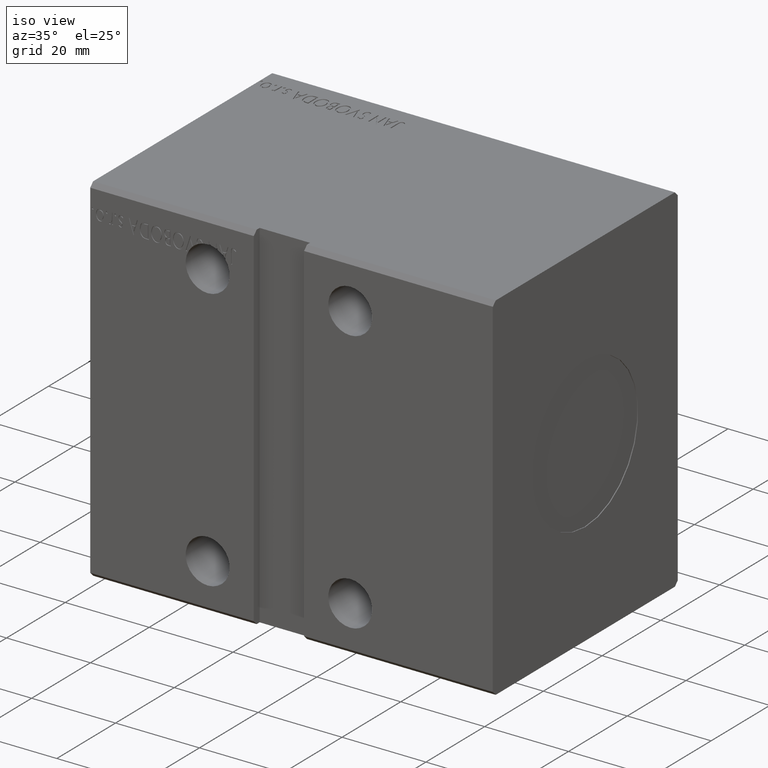
[diagram: clean part render]
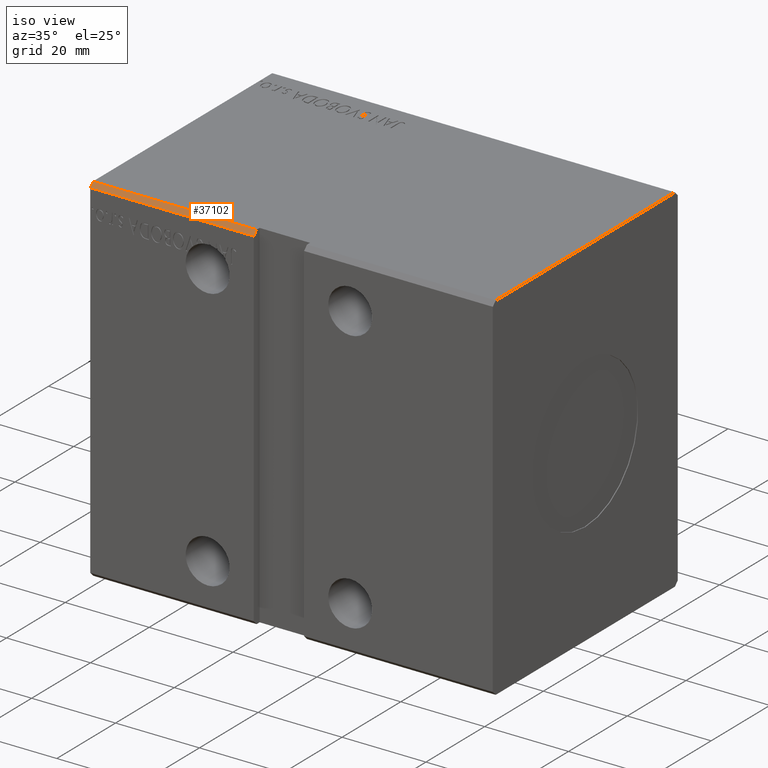
[diagram: same view with one face highlighted and labeled with its STEP entity id]
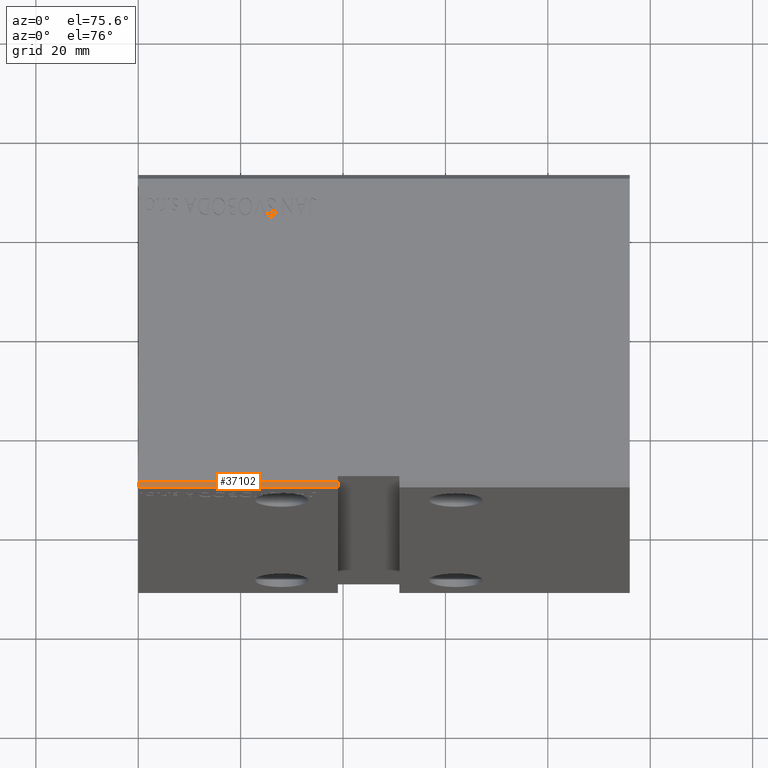
[diagram: same view with one face highlighted and labeled with its STEP entity id]
A machine part, iso view. The second image highlights one B-rep face of the part: STEP entity #37102.
A second angle (auxiliary view) of the same face is appended — the face is thin or edge-on in the first view.
In plain terms, the highlighted planar face has unit normal (0, 0.7071, -0.7071).
Its self-contained STEP definition (entity closure, byte-faithful):
#799 = LINE ( 'NONE', #26276, #34075 ) ;
#1803 = LINE ( 'NONE', #30399, #21376 ) ;
#2509 = DIRECTION ( 'NONE',  ( -1.000000000000000000, -0.000000000000000000, -0.000000000000000000 ) ) ;
#2665 = LINE ( 'NONE', #21940, #16875 ) ;
#3747 = FACE_OUTER_BOUND ( 'NONE', #19760, .T. ) ;
#7260 = CARTESIAN_POINT ( 'NONE',  ( 96.00000000000000000, -30.50000000000000355, 42.49999999999999289 ) ) ;
#10895 = CARTESIAN_POINT ( 'NONE',  ( 39.00000000000000000, -31.50000000000000000, 41.49999999999999289 ) ) ;
#10900 = EDGE_CURVE ( 'NONE', #18194, #23264, #11844, .T. ) ;
#11371 = VERTEX_POINT ( 'NONE', #10895 ) ;
#11844 = LINE ( 'NONE', #30681, #30385 ) ;
#12711 = CARTESIAN_POINT ( 'NONE',  ( 0.000000000000000000, -30.50000000000000355, 42.49999999999999289 ) ) ;
#13704 = PLANE ( 'NONE',  #32376 ) ;
#15067 = VERTEX_POINT ( 'NONE', #39847 ) ;
#16875 = VECTOR ( 'NONE', #18828, 999.9999999999998863 ) ;
#18194 = VERTEX_POINT ( 'NONE', #20303 ) ;
#18408 = EDGE_CURVE ( 'NONE', #23264, #15067, #2665, .T. ) ;
#18828 = DIRECTION ( 'NONE',  ( 0.000000000000000000, -0.7071067811865462405, -0.7071067811865489050 ) ) ;
#19760 = EDGE_LOOP ( 'NONE', ( #29538, #39306, #20844, #37265 ) ) ;
#19919 = DIRECTION ( 'NONE',  ( 0.000000000000000000, 0.7071067811865462405, 0.7071067811865487940 ) ) ;
#20303 = CARTESIAN_POINT ( 'NONE',  ( 39.00000000000000000, -30.50000000000000355, 42.49999999999999289 ) ) ;
#20844 = ORIENTED_EDGE ( 'NONE', *, *, #10900, .T. ) ;
#21376 = VECTOR ( 'NONE', #23975, 1000.000000000000000 ) ;
#21940 = CARTESIAN_POINT ( 'NONE',  ( 0.000000000000000000, -30.50000000000000355, 42.49999999999999289 ) ) ;
#23264 = VERTEX_POINT ( 'NONE', #12711 ) ;
#23975 = DIRECTION ( 'NONE',  ( -1.154479749032189471E-16, 0.7071067811865463515, 0.7071067811865487940 ) ) ;
#24053 = EDGE_CURVE ( 'NONE', #11371, #15067, #799, .T. ) ;
#26276 = CARTESIAN_POINT ( 'NONE',  ( 96.00000000000000000, -31.50000000000000000, 41.49999999999999289 ) ) ;
#29187 = DIRECTION ( 'NONE',  ( -1.000000000000000000, -0.000000000000000000, -0.000000000000000000 ) ) ;
#29538 = ORIENTED_EDGE ( 'NONE', *, *, #24053, .F. ) ;
#30385 = VECTOR ( 'NONE', #2509, 1000.000000000000000 ) ;
#30399 = CARTESIAN_POINT ( 'NONE',  ( 39.00000000000000000, -30.50000000000000711, 42.49999999999998579 ) ) ;
#30681 = CARTESIAN_POINT ( 'NONE',  ( 96.00000000000000000, -30.50000000000000355, 42.49999999999999289 ) ) ;
#32376 = AXIS2_PLACEMENT_3D ( 'NONE', #7260, #38951, #19919 ) ;
#34075 = VECTOR ( 'NONE', #29187, 1000.000000000000000 ) ;
#34843 = EDGE_CURVE ( 'NONE', #11371, #18194, #1803, .T. ) ;
#37102 = ADVANCED_FACE ( 'NONE', ( #3747 ), #13704, .F. ) ;
#37265 = ORIENTED_EDGE ( 'NONE', *, *, #18408, .T. ) ;
#38951 = DIRECTION ( 'NONE',  ( 0.000000000000000000, 0.7071067811865487940, -0.7071067811865462405 ) ) ;
#39306 = ORIENTED_EDGE ( 'NONE', *, *, #34843, .T. ) ;
#39847 = CARTESIAN_POINT ( 'NONE',  ( 0.000000000000000000, -31.50000000000000000, 41.49999999999999289 ) ) ;